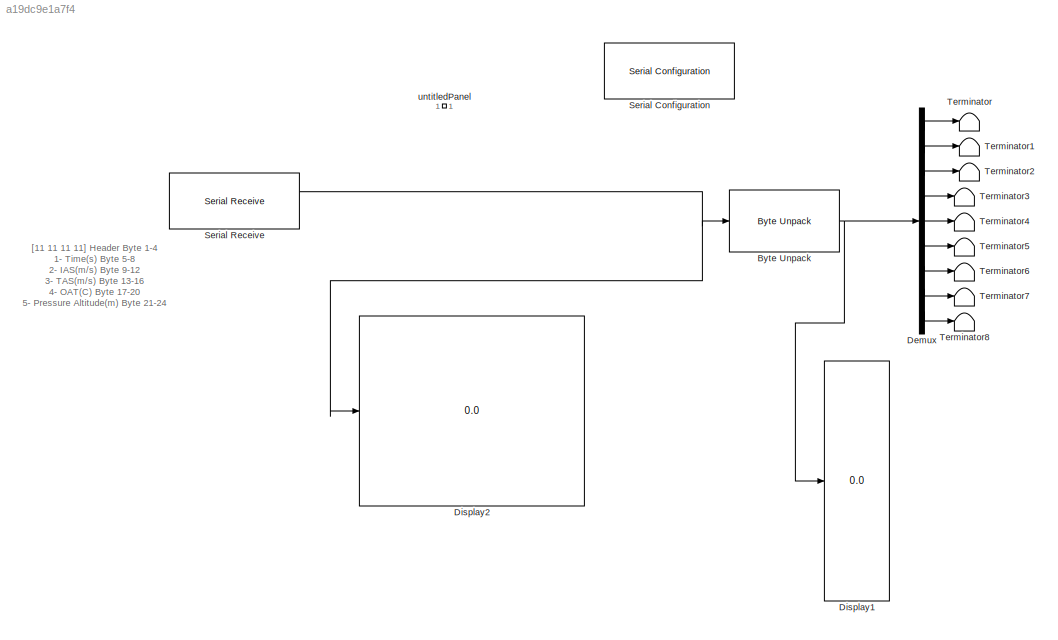
MODEL slx_a19dc9e1a7f4
KIND model
CONFIG AbsTol = auto
CONFIG EnableMultiTasking = off
CONFIG FixedStep = auto
CONFIG MaxStep = auto
CONFIG MinStep = auto
CONFIG RelTol = 1e-3
CONFIG SampleTimeConstraint = Unconstrained
CONFIG SolverName = VariableStepAuto
CONFIG StartTime = 0.0
CONFIG StopTime = inf
BLOCK [Reference] Byte Unpack  REF=etargetslib/Byte Unpack
  Ports = [1, 1]
  SourceBlock = etargetslib/Byte Unpack
  SourceProductBaseCode = ME
  SourceType = Byte Unpack
BLOCK [Demux] Demux
  Outputs = 9
  Ports = [1, 9]
BLOCK [Display] Display1
  Decimation = 1
  Ports = [1]
BLOCK [Display] Display2
  Decimation = 1
  Ports = [1]
BLOCK [Reference] Serial Configuration  REF=instrumentseriallib/Serial Configuration
  Ports = []
  Priority = -200000
  SourceBlock = instrumentseriallib/Serial Configuration
  SourceProductBaseCode = IC
  SourceType = matlabshared.seriallib.internal.system.SerialConfiguration
BLOCK [Reference] Serial Receive  REF=instrumentseriallib/Serial Receive
  Ports = [0, 2]
  Priority = 1
  SourceBlock = instrumentseriallib/Serial Receive
  SourceProductBaseCode = IC
  SourceType = matlabshared.seriallib.internal.system.SerialReceive
BLOCK [Terminator] Terminator
BLOCK [Terminator] Terminator1
BLOCK [Terminator] Terminator2
BLOCK [Terminator] Terminator3
BLOCK [Terminator] Terminator4
BLOCK [Terminator] Terminator5
BLOCK [Terminator] Terminator6
BLOCK [Terminator] Terminator7
BLOCK [Terminator] Terminator8
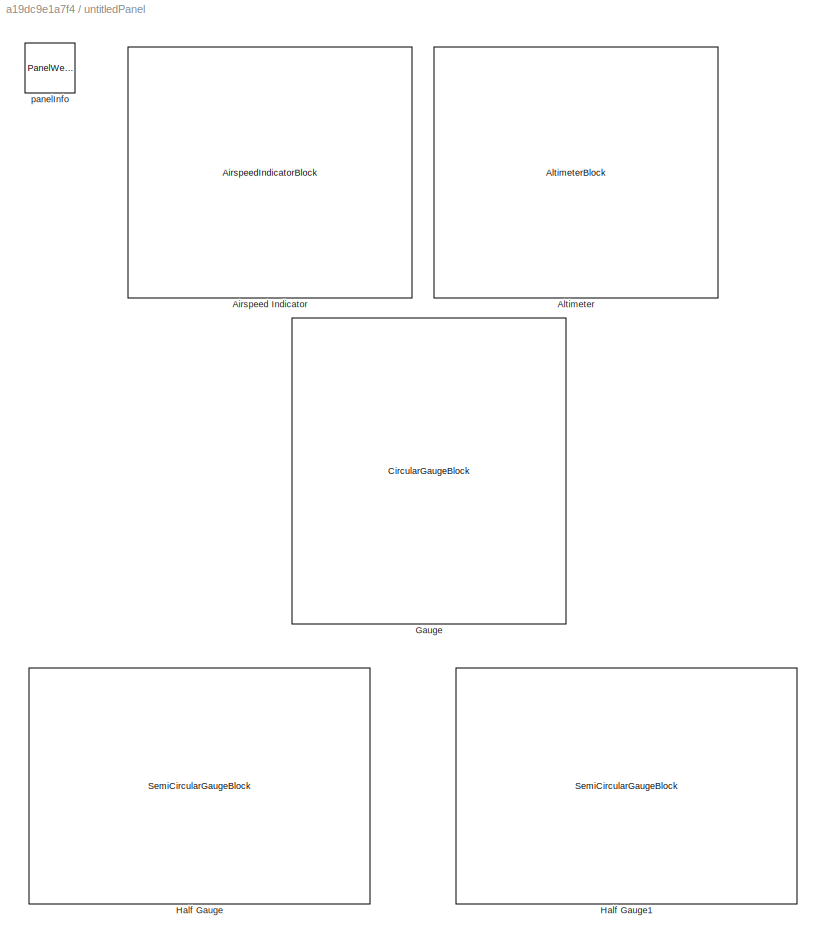
BLOCK [SubSystem] untitledPanel
  IsWebBlockPanel = on
  Ports = []
  RequestExecContextInheritance = off
  Tag = HiddenForWebPanel
BLOCK [AirspeedIndicatorBlock] untitledPanel/Airspeed Indicator
  PanelInfo = {"panelId":"panelId-93f20305-647e-43b0-9893-948fd16e2aee","type":"panelChild","version":"2019b","zIndex":1500008}
  Tag = HiddenForWebPanel
BLOCK [AltimeterBlock] untitledPanel/Altimeter
  PanelInfo = {"panelId":"panelId-93f20305-647e-43b0-9893-948fd16e2aee","type":"panelChild","version":"2019b","zIndex":1500006}
  Tag = HiddenForWebPanel
BLOCK [CircularGaugeBlock] untitledPanel/Gauge
  PanelInfo = {"panelId":"panelId-93f20305-647e-43b0-9893-948fd16e2aee","type":"panelChild","version":"2019b","zIndex":1500004}
  ScaleMax = 60
  ScaleMin = -20
  Tag = HiddenForWebPanel
BLOCK [SemiCircularGaugeBlock] untitledPanel/Half Gauge
  PanelInfo = {"panelId":"panelId-93f20305-647e-43b0-9893-948fd16e2aee","type":"panelChild","version":"2019b","zIndex":1500010}
  ScaleMax = +40
  ScaleMin = -40
  Tag = HiddenForWebPanel
BLOCK [SemiCircularGaugeBlock] untitledPanel/Half Gauge1
  PanelInfo = {"panelId":"panelId-93f20305-647e-43b0-9893-948fd16e2aee","type":"panelChild","version":"2019b","zIndex":1500002}
  ScaleMax = +40
  ScaleMin = -40
  Tag = HiddenForWebPanel
BLOCK [PanelWebBlock] untitledPanel/panelInfo
  PanelInfo = {"compacted":true,"height":1347,"isActiveTab":true,"left":1120,"name":"Panel","panelId":"panelId-93f20305-647e-43b0-9893-948fd16e2aee","tabIndex":0,"tabbedSetId":"tabbedSet5987612390","top":343,"type":"panel","version":"2019b","visible":true,"width":1212,"zIndex":1500002}
  PanelSnapshot = iVBORw0KGgoAAAANSUhEUgAABLwAAAVDCAYAAADEbDNCAAAACXBIWXMAABYlAAAWJQFJUiTwAAAgAElEQVR4nOzdd1yV5fsH8M8ZcNh7LwdDxZ05SivNcjY0TTNHjjRHmtnwWz/LUZqV5c7U3HuWKzX3FhwoKogKInvvdebz+wNBURAOHDgH/LxfL17G8zz3/VwYXC+fi/u+HhEeGn1aeE0EfAWgDQAXEBERERERERER1T4JIgAYc1r4FsBsPQdDRERERERERERUZaKHK7tOiAH1q/WEpOaWOWKxRmGm0Wik+g6OiIiIiIiIiIioosRisUojNs6TPtzGKHq1npDY0jzNSqPSSDT6jo6IiIiIiIiIiEhLGo1GCk2BlRSFPbvQ3DJHolFpJEbGxjkW...<+185784ch>
  Tag = HiddenForWebPanel
ANNOTATION (root): [11 11 11 11] Header Byte 1-4 1- Time(s) Byte 5-8 2- IAS(m/s) Byte 9-12 3- TAS(m/s) Byte 13-16 4- OAT(C) Byte 17-20 5- Pressure Altitude(m) Byte 21-24 6- Static Pressure(milliBar) Byte 25-28 7- Total Pressure(milliBar) Byte 29-32 8- Angle of Attack(Deg) Byte 33-36 9- Angle of Sideslip(Deg) Byte 37-40 [10 10 10 10] Terminator Byte 41-44
NET Byte Unpack:1 -> Demux:1, Display1:1
LINE Demux:1 -> Terminator:1
LINE Demux:2 -> Terminator1:1
LINE Demux:3 -> Terminator2:1
LINE Demux:4 -> Terminator3:1
LINE Demux:5 -> Terminator4:1
LINE Demux:6 -> Terminator5:1
LINE Demux:7 -> Terminator6:1
LINE Demux:8 -> Terminator7:1
LINE Demux:9 -> Terminator8:1
NET Serial Receive:1 -> Byte Unpack:1, Display2:1
note: NET lines group one-source signal fan-out (src -> all destinations, sorted); 1:1 wires keep LINE
